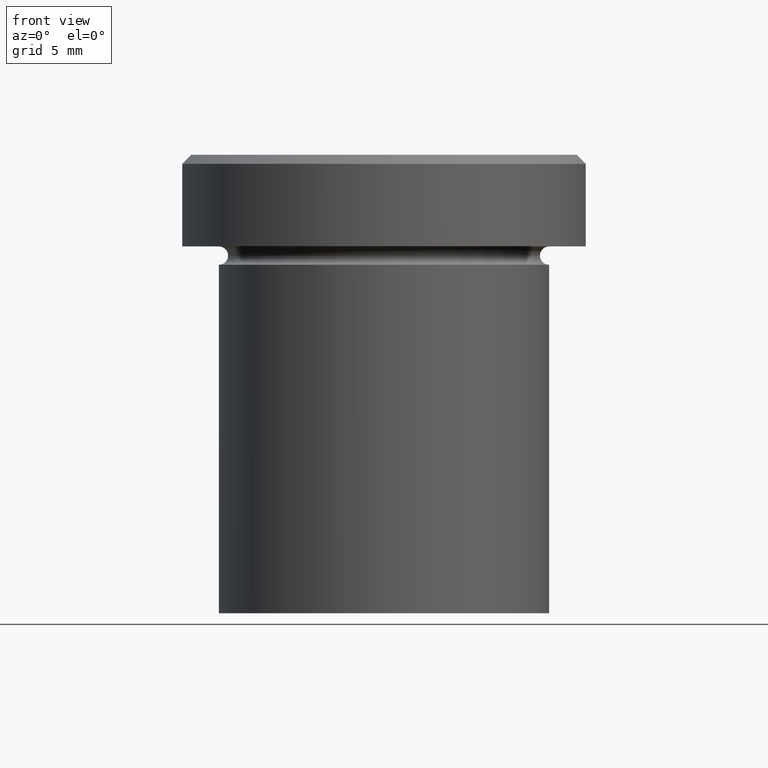
[diagram: clean part render]
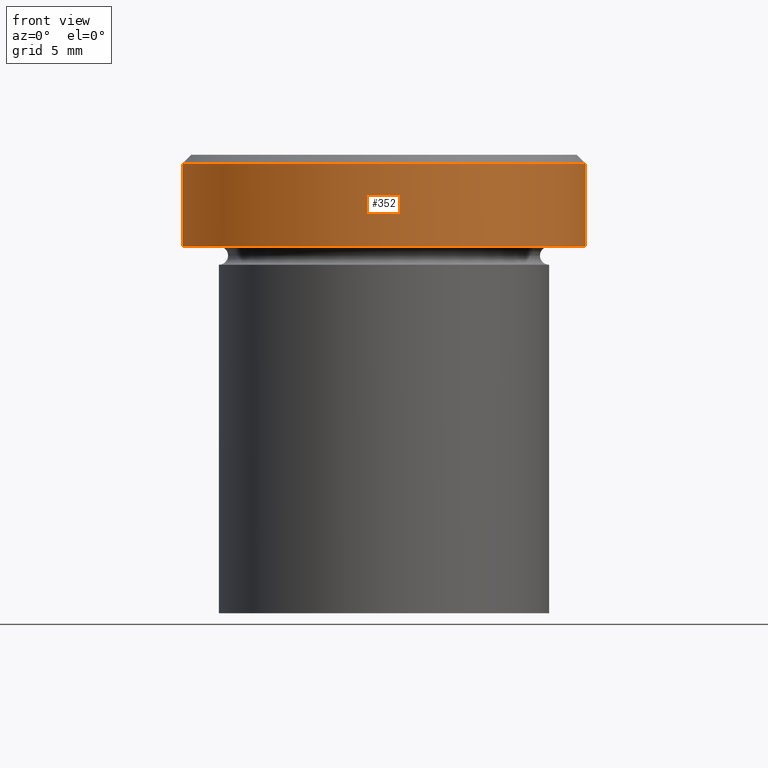
[diagram: same view with one face highlighted and labeled with its STEP entity id]
A machine part, front view. The second image highlights one B-rep face of the part: STEP entity #352.
In plain terms, the highlighted cylindrical surface (partial cylindrical patch) has radius 11 mm, axis along (-0, -0, 1).
Its self-contained STEP definition (entity closure, byte-faithful):
#2 = AXIS2_PLACEMENT_3D ( 'NONE', #397, #270, #399 ) ;
#11 = LINE ( 'NONE', #144, #239 ) ;
#21 = VERTEX_POINT ( 'NONE', #390 ) ;
#24 = CIRCLE ( 'NONE', #2, 11.00000000000000178 ) ;
#32 = VERTEX_POINT ( 'NONE', #200 ) ;
#76 = LINE ( 'NONE', #171, #307 ) ;
#87 = DIRECTION ( 'NONE',  ( 1.000000000000000000, 0.000000000000000000, 0.000000000000000000 ) ) ;
#93 = EDGE_CURVE ( 'NONE', #32, #21, #76, .T. ) ;
#106 = ORIENTED_EDGE ( 'NONE', *, *, #380, .F. ) ;
#108 = FACE_OUTER_BOUND ( 'NONE', #386, .T. ) ;
#125 = DIRECTION ( 'NONE',  ( 1.000000000000000000, 0.000000000000000000, 0.000000000000000000 ) ) ;
#134 = EDGE_CURVE ( 'NONE', #21, #184, #24, .T. ) ;
#144 = CARTESIAN_POINT ( 'NONE',  ( -11.00000000000000178, 1.347111479062088602E-15, 0.000000000000000000 ) ) ;
#159 = CARTESIAN_POINT ( 'NONE',  ( -11.00000000000000178, 1.347111479062088602E-15, -0.4999999999999882871 ) ) ;
#166 = EDGE_CURVE ( 'NONE', #274, #32, #224, .T. ) ;
#171 = CARTESIAN_POINT ( 'NONE',  ( 11.00000000000000178, 0.000000000000000000, 0.000000000000000000 ) ) ;
#184 = VERTEX_POINT ( 'NONE', #159 ) ;
#200 = CARTESIAN_POINT ( 'NONE',  ( 11.00000000000000000, 0.000000000000000000, -5.000000000000000000 ) ) ;
#205 = ORIENTED_EDGE ( 'NONE', *, *, #166, .T. ) ;
#206 = CARTESIAN_POINT ( 'NONE',  ( -11.00000000000000000, 1.347111479062088602E-15, -5.000000000000000000 ) ) ;
#207 = ORIENTED_EDGE ( 'NONE', *, *, #93, .T. ) ;
#224 = CIRCLE ( 'NONE', #295, 11.00000000000000000 ) ;
#232 = DIRECTION ( 'NONE',  ( -0.000000000000000000, -0.000000000000000000, 1.000000000000000000 ) ) ;
#239 = VECTOR ( 'NONE', #266, 1000.000000000000000 ) ;
#248 = DIRECTION ( 'NONE',  ( -0.000000000000000000, -0.000000000000000000, 1.000000000000000000 ) ) ;
#253 = DIRECTION ( 'NONE',  ( -0.000000000000000000, -0.000000000000000000, 1.000000000000000000 ) ) ;
#266 = DIRECTION ( 'NONE',  ( -0.000000000000000000, -0.000000000000000000, 1.000000000000000000 ) ) ;
#270 = DIRECTION ( 'NONE',  ( 0.000000000000000000, 0.000000000000000000, -1.000000000000000000 ) ) ;
#274 = VERTEX_POINT ( 'NONE', #206 ) ;
#295 = AXIS2_PLACEMENT_3D ( 'NONE', #405, #248, #125 ) ;
#307 = VECTOR ( 'NONE', #253, 1000.000000000000000 ) ;
#322 = ORIENTED_EDGE ( 'NONE', *, *, #134, .T. ) ;
#352 = ADVANCED_FACE ( 'NONE', ( #108 ), #384, .T. ) ;
#355 = AXIS2_PLACEMENT_3D ( 'NONE', #361, #232, #87 ) ;
#361 = CARTESIAN_POINT ( 'NONE',  ( 0.000000000000000000, 0.000000000000000000, 0.000000000000000000 ) ) ;
#380 = EDGE_CURVE ( 'NONE', #274, #184, #11, .T. ) ;
#384 = CYLINDRICAL_SURFACE ( 'NONE', #355, 11.00000000000000178 ) ;
#386 = EDGE_LOOP ( 'NONE', ( #106, #205, #207, #322 ) ) ;
#390 = CARTESIAN_POINT ( 'NONE',  ( 11.00000000000000178, 0.000000000000000000, -0.4999999999999882871 ) ) ;
#397 = CARTESIAN_POINT ( 'NONE',  ( 0.000000000000000000, 0.000000000000000000, -0.4999999999999882871 ) ) ;
#399 = DIRECTION ( 'NONE',  ( 1.000000000000000000, 0.000000000000000000, 0.000000000000000000 ) ) ;
#405 = CARTESIAN_POINT ( 'NONE',  ( 0.000000000000000000, 0.000000000000000000, -5.000000000000000000 ) ) ;